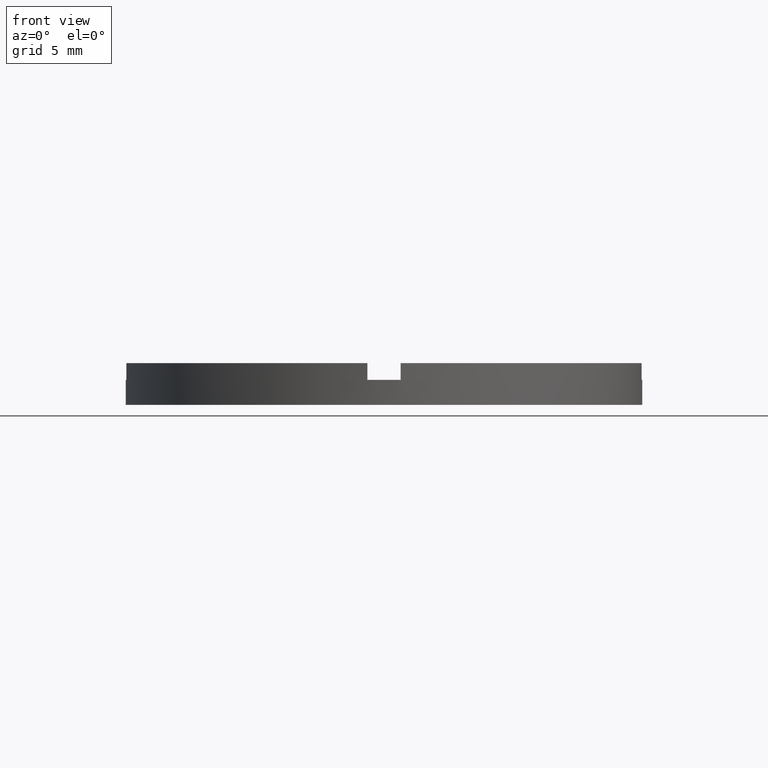
[diagram: clean part render]
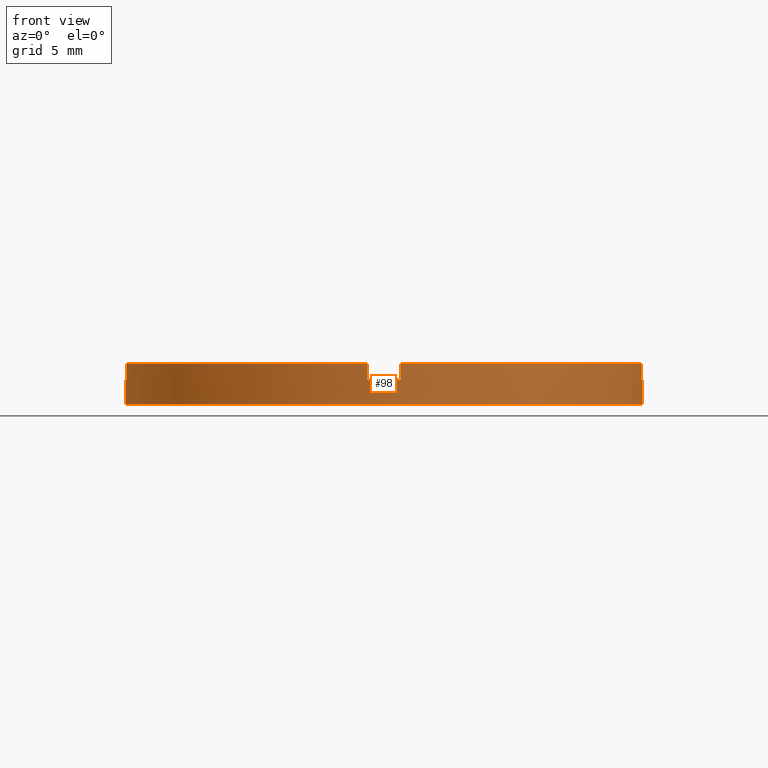
[diagram: same view with one face highlighted and labeled with its STEP entity id]
A machine part, front view. The second image highlights one B-rep face of the part: STEP entity #98.
In plain terms, the highlighted cylindrical surface (partial cylindrical patch) has radius 15.5 mm, axis along (-0, -0, -1).
Its self-contained STEP definition (entity closure, byte-faithful):
#7 = CARTESIAN_POINT ( 'NONE',  ( 0.9999999999998371303, -15.46770829825802984, 1.500000000000000000 ) ) ;
#8 = CARTESIAN_POINT ( 'NONE',  ( 0.9999999999998371303, -15.46770829825802984, 2.500000000000000000 ) ) ;
#14 = VERTEX_POINT ( 'NONE', #58 ) ;
#15 = CARTESIAN_POINT ( 'NONE',  ( -15.46770829825801741, -1.000000000000023315, 1.500000000000000000 ) ) ;
#17 = AXIS2_PLACEMENT_3D ( 'NONE', #424, #545, #259 ) ;
#28 = CARTESIAN_POINT ( 'NONE',  ( 0.000000000000000000, 0.000000000000000000, 1.500000000000000000 ) ) ;
#43 = DIRECTION ( 'NONE',  ( 1.000000000000000000, 0.000000000000000000, 0.000000000000000000 ) ) ;
#47 = ORIENTED_EDGE ( 'NONE', *, *, #440, .F. ) ;
#49 = ORIENTED_EDGE ( 'NONE', *, *, #293, .T. ) ;
#58 = CARTESIAN_POINT ( 'NONE',  ( -1.000000000000162759, -15.46770829825800853, 2.500000000000000000 ) ) ;
#80 = CARTESIAN_POINT ( 'NONE',  ( 0.000000000000000000, 0.000000000000000000, 2.500000000000000000 ) ) ;
#83 = DIRECTION ( 'NONE',  ( 1.000000000000000000, 0.000000000000000000, 0.000000000000000000 ) ) ;
#93 = CYLINDRICAL_SURFACE ( 'NONE', #370, 15.50000000000000000 ) ;
#97 = VECTOR ( 'NONE', #783, 1000.000000000000000 ) ;
#98 = ADVANCED_FACE ( 'NONE', ( #392 ), #93, .T. ) ;
#99 = LINE ( 'NONE', #661, #384 ) ;
#131 = EDGE_CURVE ( 'NONE', #571, #208, #634, .T. ) ;
#138 = AXIS2_PLACEMENT_3D ( 'NONE', #28, #337, #83 ) ;
#165 = ORIENTED_EDGE ( 'NONE', *, *, #604, .F. ) ;
#173 = CARTESIAN_POINT ( 'NONE',  ( 15.46770829825800853, -1.000000000000159206, 2.500000000000000000 ) ) ;
#177 = ORIENTED_EDGE ( 'NONE', *, *, #355, .T. ) ;
#208 = VERTEX_POINT ( 'NONE', #15 ) ;
#209 = DIRECTION ( 'NONE',  ( 1.000000000000000000, 0.000000000000000000, 0.000000000000000000 ) ) ;
#213 = DIRECTION ( 'NONE',  ( -0.000000000000000000, -0.000000000000000000, -1.000000000000000000 ) ) ;
#214 = ORIENTED_EDGE ( 'NONE', *, *, #131, .F. ) ;
#215 = EDGE_CURVE ( 'NONE', #294, #368, #391, .T. ) ;
#217 = DIRECTION ( 'NONE',  ( -0.000000000000000000, -0.000000000000000000, -1.000000000000000000 ) ) ;
#231 = CARTESIAN_POINT ( 'NONE',  ( -15.46770829825801741, -1.000000000000023315, 2.500000000000000000 ) ) ;
#234 = EDGE_LOOP ( 'NONE', ( #576, #319, #304, #585, #49, #165, #177, #47, #485, #214, #728, #568 ) ) ;
#238 = VERTEX_POINT ( 'NONE', #374 ) ;
#243 = DIRECTION ( 'NONE',  ( 0.000000000000000000, 0.000000000000000000, 1.000000000000000000 ) ) ;
#245 = VERTEX_POINT ( 'NONE', #7 ) ;
#246 = CARTESIAN_POINT ( 'NONE',  ( 15.46770829825800853, -1.000000000000159206, 1.500000000000000000 ) ) ;
#250 = VERTEX_POINT ( 'NONE', #581 ) ;
#259 = DIRECTION ( 'NONE',  ( 1.000000000000000000, 0.000000000000000000, 0.000000000000000000 ) ) ;
#270 = DIRECTION ( 'NONE',  ( 1.000000000000000000, 0.000000000000000000, 0.000000000000000000 ) ) ;
#273 = CARTESIAN_POINT ( 'NONE',  ( 0.000000000000000000, 0.000000000000000000, 2.500000000000000000 ) ) ;
#277 = AXIS2_PLACEMENT_3D ( 'NONE', #273, #527, #270 ) ;
#293 = EDGE_CURVE ( 'NONE', #238, #245, #637, .T. ) ;
#294 = VERTEX_POINT ( 'NONE', #246 ) ;
#304 = ORIENTED_EDGE ( 'NONE', *, *, #334, .T. ) ;
#319 = ORIENTED_EDGE ( 'NONE', *, *, #215, .F. ) ;
#326 = CARTESIAN_POINT ( 'NONE',  ( 0.000000000000000000, 0.000000000000000000, 1.500000000000000000 ) ) ;
#332 = CARTESIAN_POINT ( 'NONE',  ( 0.000000000000000000, 0.000000000000000000, 0.000000000000000000 ) ) ;
#334 = EDGE_CURVE ( 'NONE', #294, #543, #99, .T. ) ;
#337 = DIRECTION ( 'NONE',  ( -0.000000000000000000, 0.000000000000000000, 1.000000000000000000 ) ) ;
#350 = AXIS2_PLACEMENT_3D ( 'NONE', #332, #243, #43 ) ;
#355 = EDGE_CURVE ( 'NONE', #715, #14, #649, .T. ) ;
#368 = VERTEX_POINT ( 'NONE', #492 ) ;
#370 = AXIS2_PLACEMENT_3D ( 'NONE', #80, #217, #763 ) ;
#374 = CARTESIAN_POINT ( 'NONE',  ( 0.9999999999998371303, -15.46770829825802984, 2.500000000000000000 ) ) ;
#384 = VECTOR ( 'NONE', #610, 1000.000000000000000 ) ;
#388 = CARTESIAN_POINT ( 'NONE',  ( 0.000000000000000000, 0.000000000000000000, 1.500000000000000000 ) ) ;
#391 = CIRCLE ( 'NONE', #594, 15.50000000000000000 ) ;
#392 = FACE_OUTER_BOUND ( 'NONE', #234, .T. ) ;
#394 = EDGE_CURVE ( 'NONE', #470, #250, #655, .T. ) ;
#395 = CARTESIAN_POINT ( 'NONE',  ( 15.50000000000000000, 1.898202538678397557E-15, 2.500000000000000000 ) ) ;
#397 = DIRECTION ( 'NONE',  ( 0.000000000000000000, 0.000000000000000000, 1.000000000000000000 ) ) ;
#402 = DIRECTION ( 'NONE',  ( 1.000000000000000000, 0.000000000000000000, 0.000000000000000000 ) ) ;
#410 = VECTOR ( 'NONE', #640, 1000.000000000000000 ) ;
#424 = CARTESIAN_POINT ( 'NONE',  ( 0.000000000000000000, 0.000000000000000000, 2.500000000000000000 ) ) ;
#426 = VECTOR ( 'NONE', #213, 1000.000000000000000 ) ;
#428 = CIRCLE ( 'NONE', #277, 15.50000000000000000 ) ;
#435 = LINE ( 'NONE', #697, #442 ) ;
#440 = EDGE_CURVE ( 'NONE', #681, #14, #445, .T. ) ;
#442 = VECTOR ( 'NONE', #589, 1000.000000000000000 ) ;
#445 = CIRCLE ( 'NONE', #17, 15.50000000000000000 ) ;
#462 = CARTESIAN_POINT ( 'NONE',  ( -1.000000000000162759, -15.46770829825800853, 1.500000000000000000 ) ) ;
#470 = VERTEX_POINT ( 'NONE', #725 ) ;
#485 = ORIENTED_EDGE ( 'NONE', *, *, #718, .T. ) ;
#492 = CARTESIAN_POINT ( 'NONE',  ( 15.50000000000000000, 1.898202538678397557E-15, 1.500000000000000000 ) ) ;
#515 = CARTESIAN_POINT ( 'NONE',  ( -15.50000000000000000, 0.000000000000000000, 1.500000000000000000 ) ) ;
#527 = DIRECTION ( 'NONE',  ( 0.000000000000000000, 0.000000000000000000, 1.000000000000000000 ) ) ;
#543 = VERTEX_POINT ( 'NONE', #173 ) ;
#545 = DIRECTION ( 'NONE',  ( 0.000000000000000000, 0.000000000000000000, 1.000000000000000000 ) ) ;
#568 = ORIENTED_EDGE ( 'NONE', *, *, #394, .T. ) ;
#571 = VERTEX_POINT ( 'NONE', #515 ) ;
#576 = ORIENTED_EDGE ( 'NONE', *, *, #608, .F. ) ;
#581 = CARTESIAN_POINT ( 'NONE',  ( 15.50000000000000000, 1.898202538678397557E-15, 0.000000000000000000 ) ) ;
#585 = ORIENTED_EDGE ( 'NONE', *, *, #618, .F. ) ;
#589 = DIRECTION ( 'NONE',  ( -0.000000000000000000, -0.000000000000000000, -1.000000000000000000 ) ) ;
#594 = AXIS2_PLACEMENT_3D ( 'NONE', #326, #759, #402 ) ;
#601 = DIRECTION ( 'NONE',  ( 0.000000000000000000, 0.000000000000000000, 1.000000000000000000 ) ) ;
#604 = EDGE_CURVE ( 'NONE', #715, #245, #672, .T. ) ;
#608 = EDGE_CURVE ( 'NONE', #368, #250, #690, .T. ) ;
#610 = DIRECTION ( 'NONE',  ( 0.000000000000000000, 0.000000000000000000, 1.000000000000000000 ) ) ;
#613 = AXIS2_PLACEMENT_3D ( 'NONE', #388, #397, #209 ) ;
#618 = EDGE_CURVE ( 'NONE', #238, #543, #428, .T. ) ;
#628 = CARTESIAN_POINT ( 'NONE',  ( -15.46770829825801741, -1.000000000000023315, 2.500000000000000000 ) ) ;
#634 = CIRCLE ( 'NONE', #613, 15.50000000000000000 ) ;
#637 = LINE ( 'NONE', #8, #97 ) ;
#640 = DIRECTION ( 'NONE',  ( -0.000000000000000000, -0.000000000000000000, -1.000000000000000000 ) ) ;
#649 = LINE ( 'NONE', #727, #654 ) ;
#654 = VECTOR ( 'NONE', #601, 1000.000000000000000 ) ;
#655 = CIRCLE ( 'NONE', #350, 15.50000000000000000 ) ;
#661 = CARTESIAN_POINT ( 'NONE',  ( 15.46770829825800853, -1.000000000000159206, 2.500000000000000000 ) ) ;
#667 = LINE ( 'NONE', #231, #410 ) ;
#672 = CIRCLE ( 'NONE', #138, 15.50000000000000000 ) ;
#681 = VERTEX_POINT ( 'NONE', #628 ) ;
#690 = LINE ( 'NONE', #395, #426 ) ;
#697 = CARTESIAN_POINT ( 'NONE',  ( -15.50000000000000000, 0.000000000000000000, 2.500000000000000000 ) ) ;
#701 = EDGE_CURVE ( 'NONE', #571, #470, #435, .T. ) ;
#715 = VERTEX_POINT ( 'NONE', #462 ) ;
#718 = EDGE_CURVE ( 'NONE', #681, #208, #667, .T. ) ;
#725 = CARTESIAN_POINT ( 'NONE',  ( -15.50000000000000000, 0.000000000000000000, 0.000000000000000000 ) ) ;
#727 = CARTESIAN_POINT ( 'NONE',  ( -1.000000000000162759, -15.46770829825800853, 2.500000000000000000 ) ) ;
#728 = ORIENTED_EDGE ( 'NONE', *, *, #701, .T. ) ;
#759 = DIRECTION ( 'NONE',  ( 0.000000000000000000, 0.000000000000000000, 1.000000000000000000 ) ) ;
#763 = DIRECTION ( 'NONE',  ( -1.000000000000000000, 0.000000000000000000, 0.000000000000000000 ) ) ;
#783 = DIRECTION ( 'NONE',  ( -0.000000000000000000, -0.000000000000000000, -1.000000000000000000 ) ) ;